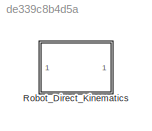
MODEL slx_de339c8b4d5a
KIND model
CONFIG AbsTol = auto
CONFIG EnableMultiTasking = off
CONFIG FixedStep = auto
CONFIG MaxStep = auto
CONFIG MinStep = auto
CONFIG RelTol = 1e-3
CONFIG SampleTimeConstraint = Unconstrained
CONFIG SolverName = VariableStepAuto
CONFIG StartTime = 0.0
CONFIG StopTime = 10.0
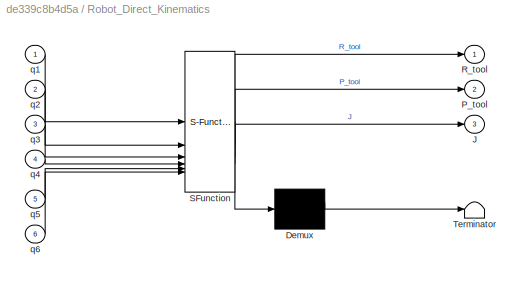
BLOCK [SubSystem] Robot_Direct_Kinematics
  ErrorFcn = Stateflow.Translate.translate
  PermitHierarchicalResolution = ExplicitOnly
  SFBlockType = MATLAB Function
  TreatAsAtomicUnit = on
BLOCK [Demux] Robot_Direct_Kinematics/ Demux 
  Outputs = 1
BLOCK [S-Function] Robot_Direct_Kinematics/ SFunction 
  EnableBusSupport = off
  FunctionName = sf_sfun
  PortCounts = [6 4]
  SFcnIsStateOwnerBlock = off
  SFunctionDeploymentMode = off
  Tag = Stateflow S-Function 2
BLOCK [Terminator] Robot_Direct_Kinematics/ Terminator 
BLOCK [Outport] Robot_Direct_Kinematics/J
  Port = 3
BLOCK [Outport] Robot_Direct_Kinematics/P_tool
  Port = 2
BLOCK [Outport] Robot_Direct_Kinematics/R_tool
BLOCK [Inport] Robot_Direct_Kinematics/q1
BLOCK [Inport] Robot_Direct_Kinematics/q2
  Port = 2
BLOCK [Inport] Robot_Direct_Kinematics/q3
  Port = 3
BLOCK [Inport] Robot_Direct_Kinematics/q4
  Port = 4
BLOCK [Inport] Robot_Direct_Kinematics/q5
  Port = 5
BLOCK [Inport] Robot_Direct_Kinematics/q6
  Port = 6
CHART Robot_Direct_Kinematics states=1 transitions=1
  STATE_LABEL 'eML_blk_kernel()'
  STATE_LABEL 'SCRIPT:\nfunction [R_tool,P_tool,J] = Robot_Direct_Kinematics(q1,q2,q3,q4,q5,q6)\n%#codegen\n\n%    This function was generated by the Symbolic Math Toolbox version 24.2.\n%    24-May-2025 22:37:09\n\n% q1 = complex(q1);  % if required to enforce complex operations\n% q2 = complex(q2);  % if required to enforce complex operations\n% q3 = complex(q3);  % if required to enforce complex operations\n% q4 = comp...<+3608ch>'
CHART  states=0 transitions=0
